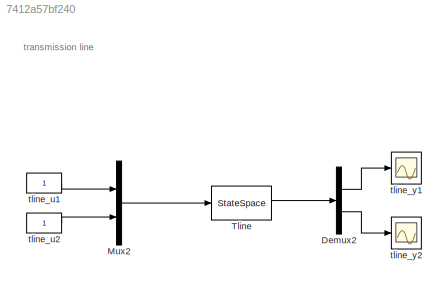
MODEL slx_7412a57bf240
KIND model
BLOCK [Demux] Demux2
  DisplayOption = bar
  Outputs = 2
  Ports = [1, 2]
BLOCK [Mux] Mux2
  DisplayOption = bar
  Inputs = 2
  Ports = [2, 1]
BLOCK [StateSpace] Tline
  A = tline_sys.sys.a
  B = tline_sys.sys.b
  C = tline_sys.sys.c
  D = tline_sys.sys.d
  Ports = [1, 1]
  X0 = tline_sys.x0_lb
BLOCK [Constant] tline_u1
BLOCK [Constant] tline_u2
BLOCK [Scope] tline_y1
  Floating = off
  NumInputPorts = 1
  Ports = [1]
  SaveName = ScopeData5
  ShowLegends = off
BLOCK [Scope] tline_y2
  Floating = off
  NumInputPorts = 1
  Ports = [1]
  SaveName = ScopeData6
  ShowLegends = off
ANNOTATION (root): transmission line
LINE Demux2:1 -> tline_y1:1
LINE Demux2:2 -> tline_y2:1
LINE Mux2:1 -> Tline:1
LINE Tline:1 -> Demux2:1
LINE tline_u1:1 -> Mux2:1
LINE tline_u2:1 -> Mux2:2
